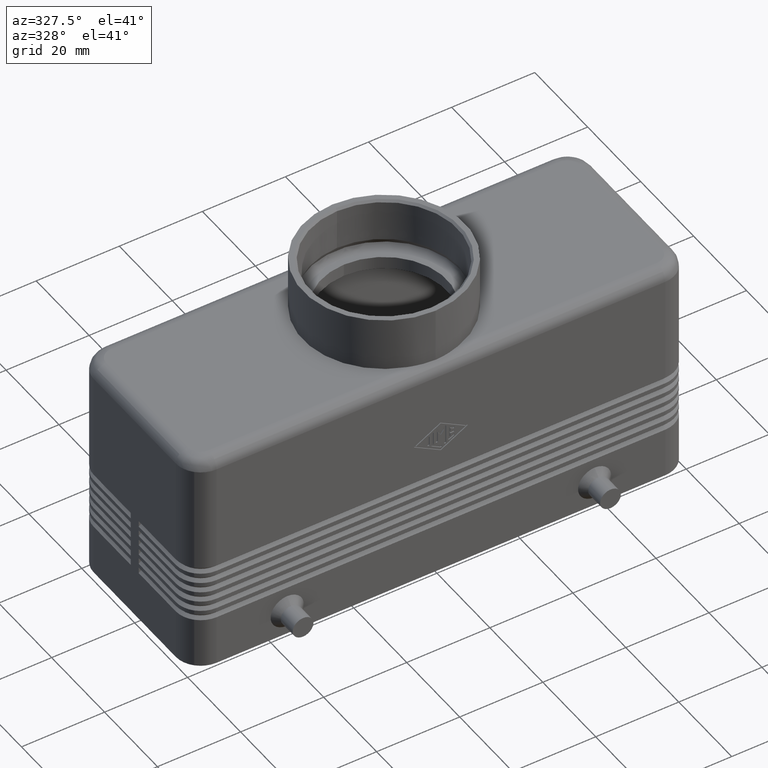
[diagram: clean part render]
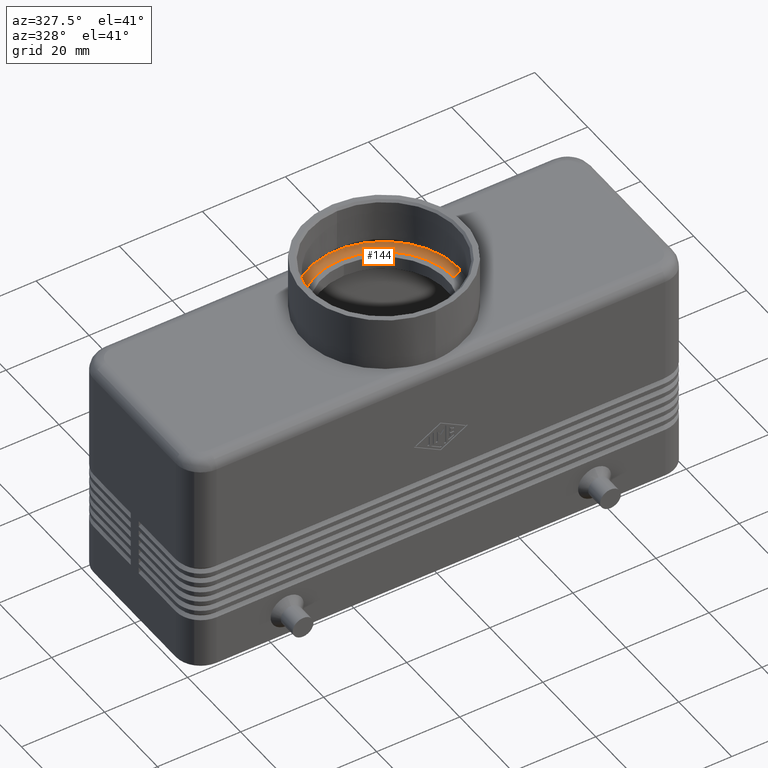
[diagram: same view with one face highlighted and labeled with its STEP entity id]
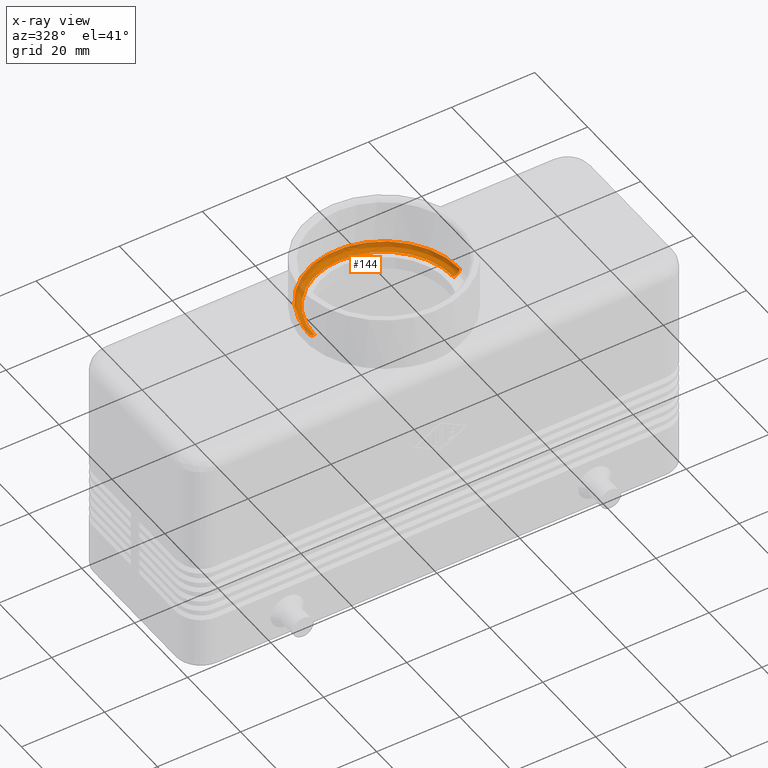
[diagram: x-ray of the same camera — body ghosted, the highlighted face saturated]
A machine part, auxiliary view. The second image highlights one B-rep face of the part: STEP entity #144.
The next image is the same camera in x-ray: the body ghosted, the highlighted face saturated — about 5% of this face is hidden behind the body in this view.
In plain terms, the highlighted face is a freeform B-spline surface patch.
Its self-contained STEP definition (entity closure, byte-faithful):
#44=CARTESIAN_POINT('',(18.240000000000002,-6.674574E-015,56.500000000000007));
#45=CARTESIAN_POINT('',(18.240000000000009,-6.338995E-015,55.0));
#46=CARTESIAN_POINT('',(16.740000000000002,-6.155304E-015,55.0));
#47=CARTESIAN_POINT('',(15.239999999999997,-5.971613E-015,55.0));
#48=CARTESIAN_POINT('',(15.240000000000002,-6.307192E-015,56.500000000000007));
#49=CARTESIAN_POINT('',(18.239999999999995,-18.240000000000006,56.500000000000000));
#50=CARTESIAN_POINT('',(18.240000000000002,-18.240000000000013,54.999999999999993));
#51=CARTESIAN_POINT('',(16.739999999999995,-16.740000000000006,54.999999999999986));
#52=CARTESIAN_POINT('',(15.239999999999990,-15.239999999999997,55.0));
#53=CARTESIAN_POINT('',(15.239999999999995,-15.240000000000006,56.500000000000007));
#54=CARTESIAN_POINT('',(-2.233682E-015,-18.240000000000006,56.500000000000000));
#55=CARTESIAN_POINT('',(-2.233682E-015,-18.240000000000013,54.999999999999993));
#56=CARTESIAN_POINT('',(-2.049991E-015,-16.740000000000006,54.999999999999993));
#57=CARTESIAN_POINT('',(-1.866300E-015,-15.239999999999998,55.0));
#58=CARTESIAN_POINT('',(-1.866300E-015,-15.240000000000007,56.500000000000007));
#59=CARTESIAN_POINT('',(-18.240000000000002,-18.239999999999998,56.500000000000000));
#60=CARTESIAN_POINT('',(-18.240000000000009,-18.240000000000006,54.999999999999993));
#61=CARTESIAN_POINT('',(-16.740000000000002,-16.739999999999998,54.999999999999986));
#62=CARTESIAN_POINT('',(-15.239999999999993,-15.239999999999993,55.0));
#63=CARTESIAN_POINT('',(-15.240000000000000,-15.240000000000004,56.500000000000007));
#64=CARTESIAN_POINT('',(-18.240000000000002,-2.207210E-015,56.500000000000007));
#65=CARTESIAN_POINT('',(-18.240000000000009,-1.871631E-015,55.0));
#66=CARTESIAN_POINT('',(-16.740000000000002,-2.055322E-015,55.0));
#67=CARTESIAN_POINT('',(-15.239999999999997,-2.239013E-015,55.0));
#68=CARTESIAN_POINT('',(-15.240000000000002,-2.574592E-015,56.500000000000007));
#69=CARTESIAN_POINT('',(-18.239999999999995,18.239999999999998,56.500000000000007));
#70=CARTESIAN_POINT('',(-18.240000000000002,18.240000000000006,55.000000000000007));
#71=CARTESIAN_POINT('',(-16.739999999999995,16.739999999999998,55.000000000000007));
#72=CARTESIAN_POINT('',(-15.239999999999990,15.239999999999990,55.0));
#73=CARTESIAN_POINT('',(-15.239999999999995,15.239999999999995,56.500000000000007));
#74=CARTESIAN_POINT('',(2.233682E-015,18.239999999999998,56.500000000000014));
#75=CARTESIAN_POINT('',(2.233682E-015,18.240000000000006,55.0));
#76=CARTESIAN_POINT('',(2.049991E-015,16.739999999999998,55.000000000000007));
#77=CARTESIAN_POINT('',(1.866300E-015,15.239999999999991,55.0));
#78=CARTESIAN_POINT('',(1.866300E-015,15.239999999999997,56.500000000000007));
#79=CARTESIAN_POINT('',(18.240000000000002,18.239999999999991,56.500000000000007));
#80=CARTESIAN_POINT('',(18.240000000000009,18.239999999999998,55.000000000000007));
#81=CARTESIAN_POINT('',(16.740000000000002,16.739999999999991,55.000000000000007));
#82=CARTESIAN_POINT('',(15.239999999999993,15.239999999999986,55.0));
#83=CARTESIAN_POINT('',(15.240000000000000,15.239999999999991,56.500000000000007));
#84=CARTESIAN_POINT('',(18.240000000000002,-6.674574E-015,56.500000000000007));
#85=CARTESIAN_POINT('',(18.240000000000009,-6.338995E-015,55.0));
#86=CARTESIAN_POINT('',(16.740000000000002,-6.155304E-015,55.0));
#87=CARTESIAN_POINT('',(15.239999999999997,-5.971613E-015,55.0));
#88=CARTESIAN_POINT('',(15.240000000000002,-6.307192E-015,56.500000000000007));
#96=(BOUNDED_SURFACE()B_SPLINE_SURFACE(2,2,((#44,#49,#54,#59,#64,#69,#74,#79,#84),(#45,#50,#55,#60,#65,#70,#75,#80,#85),(#46,#51,#56,#61,#66,#71,#76,#81,#86),(#47,#52,#57,#62,#67,#72,#77,#82,#87),(#48,#53,#58,#63,#68,#73,#78,#83,#88)),.UNSPECIFIED.,.F.,.T.,.U.)B_SPLINE_SURFACE_WITH_KNOTS((3,2,3),(3,2,2,2,3),(-4.736952E-015,1.570796326794897,3.141592653589798),(0.0,1.570796326794897,3.141592653589793,4.712388980384690,6.283185307179586),.UNSPECIFIED.)GEOMETRIC_REPRESENTATION_ITEM()RATIONAL_B_SPLINE_SURFACE(((1.0,0.707106781186548,1.0,0.707106781186548,1.0,0.707106781186548,1.0,0.707106781186548,1.0),(0.707106781186538,0.499999999999993,0.707106781186538,0.499999999999993,0.707106781186538,0.499999999999993,0.707106781186538,0.499999999999993,0.707106781186538),(1.0,0.707106781186548,1.0,0.707106781186548,1.0,0.707106781186548,1.0,0.707106781186548,1.0),(0.707106781186541,0.499999999999996,0.707106781186541,0.499999999999996,0.707106781186541,0.499999999999996,0.707106781186541,0.499999999999996,0.707106781186541),(1.0,0.707106781186548,1.0,0.707106781186548,1.0,0.707106781186548,1.0,0.707106781186548,1.0)))REPRESENTATION_ITEM('')SURFACE());
#97=CARTESIAN_POINT('',(-18.240000000000002,-7.425935E-015,56.500000000000000));
#98=VERTEX_POINT('',#97);
#99=CARTESIAN_POINT('',(18.240000000000002,-1.455849E-015,56.500000000000000));
#100=VERTEX_POINT('',#99);
#101=CARTESIAN_POINT('',(0.0,-4.440892E-015,56.500000000000000));
#102=DIRECTION('',(0.0,0.0,-1.0));
#103=DIRECTION('',(-1.0,0.0,0.0));
#104=AXIS2_PLACEMENT_3D('',#101,#102,#103);
#105=CIRCLE('',#104,18.240000000000002);
#106=EDGE_CURVE('',#98,#100,#105,.T.);
#107=ORIENTED_EDGE('',*,*,#106,.F.);
#108=CARTESIAN_POINT('',(-16.739999999999998,-6.155304E-015,55.0));
#109=VERTEX_POINT('',#108);
#110=CARTESIAN_POINT('',(-16.740000000000002,-6.490883E-015,56.500000000000000));
#111=DIRECTION('',(0.0,-1.0,0.0));
#112=DIRECTION('',(-1.0,0.0,0.0));
#113=AXIS2_PLACEMENT_3D('',#110,#111,#112);
#114=CIRCLE('',#113,1.500000000000000);
#115=EDGE_CURVE('',#98,#109,#114,.T.);
#116=ORIENTED_EDGE('',*,*,#115,.T.);
#117=CARTESIAN_POINT('',(0.0,16.739999999999995,55.0));
#118=VERTEX_POINT('',#117);
#119=CARTESIAN_POINT('',(0.0,-3.355793E-015,55.0));
#120=DIRECTION('',(0.0,0.0,1.0));
#121=DIRECTION('',(0.0,1.0,0.0));
#122=AXIS2_PLACEMENT_3D('',#119,#120,#121);
#123=CIRCLE('',#122,16.739999999999998);
#124=EDGE_CURVE('',#118,#109,#123,.T.);
#125=ORIENTED_EDGE('',*,*,#124,.F.);
#126=CARTESIAN_POINT('',(16.739999999999998,-2.055322E-015,55.0));
#127=VERTEX_POINT('',#126);
#128=CARTESIAN_POINT('',(0.0,-3.355793E-015,55.0));
#129=DIRECTION('',(0.0,0.0,1.0));
#130=DIRECTION('',(0.0,1.0,0.0));
#131=AXIS2_PLACEMENT_3D('',#128,#129,#130);
#132=CIRCLE('',#131,16.739999999999998);
#133=EDGE_CURVE('',#127,#118,#132,.T.);
#134=ORIENTED_EDGE('',*,*,#133,.F.);
#135=CARTESIAN_POINT('',(16.740000000000002,-2.390901E-015,56.500000000000000));
#136=DIRECTION('',(0.0,-1.0,0.0));
#137=DIRECTION('',(1.0,0.0,0.0));
#138=AXIS2_PLACEMENT_3D('',#135,#136,#137);
#139=CIRCLE('',#138,1.500000000000000);
#140=EDGE_CURVE('',#127,#100,#139,.T.);
#141=ORIENTED_EDGE('',*,*,#140,.T.);
#142=EDGE_LOOP('',(#107,#116,#125,#134,#141));
#143=FACE_OUTER_BOUND('',#142,.T.);
#144=ADVANCED_FACE('',(#143),#96,.T.);